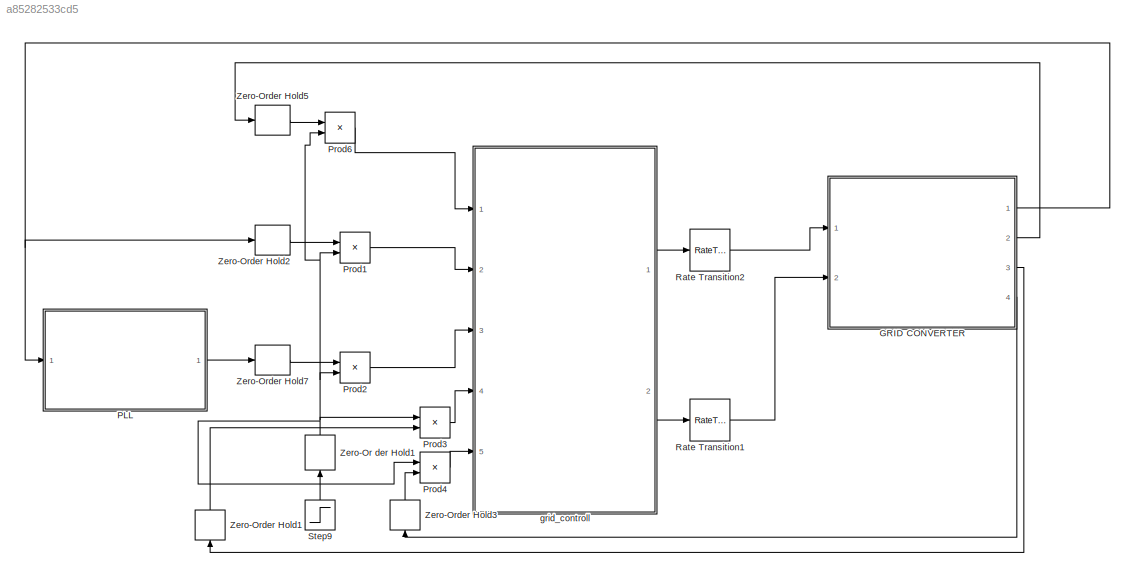
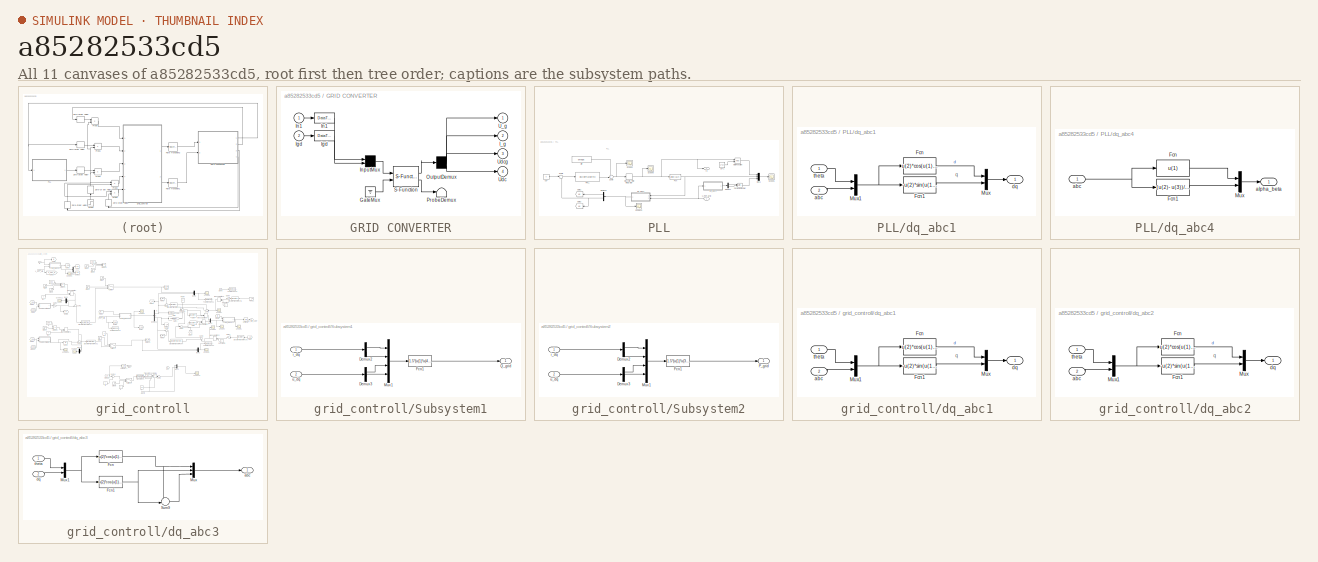
[diagram: thumbnail index - all 11 canvases of the model, root first then tree order]
MODEL slx_a85282533cd5
KIND model
BLOCK [SubSystem] GRID CONVERTER
  CopyFcn = plecs('sl', 203);
  DeleteFcn = plecs('sl', 205);
  DestroyFcn = plecs('sl', 207);
  ErrorFcn = plerrorfcn
  FunctionWithSeparateData = off
  InitFcn = plecs('sl', 214);
  LoadFcn = plecs('sl', 200);
  MaskHideContents = off
  MinAlgLoopOccurrences = off
  NameChangeFcn = plecs('sl', 210);
  Opaque = off
  OpenFcn = plecs('sl', 202);
  Ports = [2, 4]
  PostSaveFcn = plecs('sl', 201);
  PreCopyFcn = plecs('sl', 216);
  PreSaveFcn = plecs('sl', 211);
  PropExecContextOutsideSubsystem = off
  RTWSystemCode = Auto
  RequestExecContextInheritance = off
  StartFcn = plecs('sl', 208);
  StopFcn = plecs('sl', 209);
  UndoDeleteFcn = plecs('sl', 206);
BLOCK [Ground] GRID CONVERTER/ GateMux 
BLOCK [DataTypeConversion] GRID CONVERTER/ Igd 
BLOCK [DataTypeConversion] GRID CONVERTER/ In1 
BLOCK [Mux] GRID CONVERTER/ InputMux 
  Inputs = [ 3 1 ]
  Ports = [2, 1]
BLOCK [Demux] GRID CONVERTER/ OutputDemux 
  Outputs = [ 3 3 1 1 ]
  Ports = [1, 4]
BLOCK [Terminator] GRID CONVERTER/ ProbeDemux 
BLOCK [S-Function] GRID CONVERTER/ S-Function 
  EnableBusSupport = off
  FunctionName = plecs
  Ports = [2, 2]
BLOCK [Outport] GRID CONVERTER/I_g
  IconDisplay = Port number
  Port = 2
  PortDimensions = 3
BLOCK [Inport] GRID CONVERTER/Igd
  IconDisplay = Port number
  Port = 2
  PortDimensions = 1
BLOCK [Inport] GRID CONVERTER/In1
  IconDisplay = Port number
  PortDimensions = 3
BLOCK [Outport] GRID CONVERTER/U_g
  IconDisplay = Port number
  PortDimensions = 3
BLOCK [Outport] GRID CONVERTER/Udc
  IconDisplay = Port number
  Port = 4
  PortDimensions = 1
BLOCK [Outport] GRID CONVERTER/Udcg
  IconDisplay = Port number
  Port = 3
  PortDimensions = 1
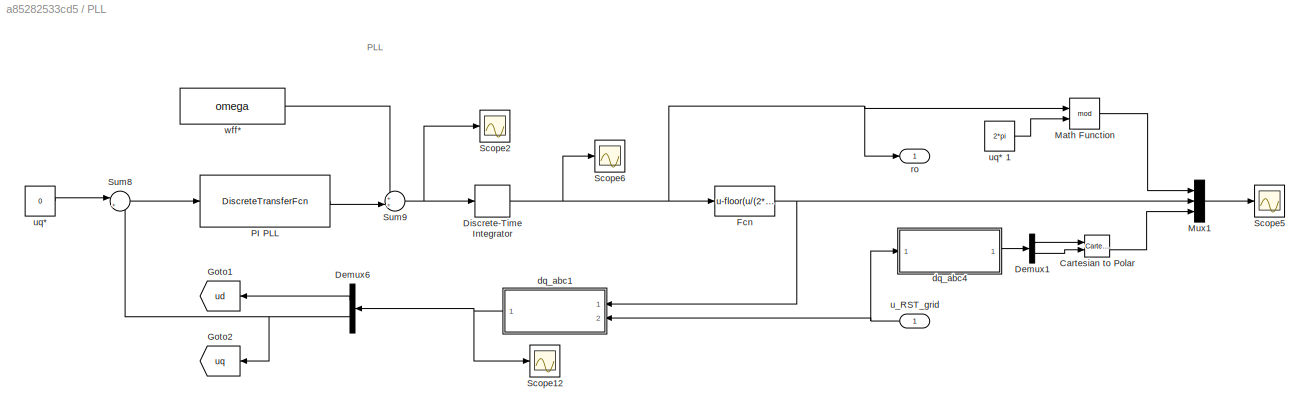
BLOCK [SubSystem] PLL
  FunctionWithSeparateData = off
  MaskHideContents = off
  MinAlgLoopOccurrences = off
  Opaque = off
  Ports = [1, 1]
  PropExecContextOutsideSubsystem = off
  RTWSystemCode = Auto
  RequestExecContextInheritance = off
BLOCK [Reference] PLL/Cartesian to Polar  REF=simulink_extras/Transformations/Cartesian to
Polar
  Ports = [2, 2]
  SourceBlock = simulink_extras/Transformations/Cartesian to\nPolar
  SourceType = Cart2Polar
BLOCK [Demux] PLL/Demux1
  DisplayOption = bar
  Outputs = 2
  Ports = [1, 2]
BLOCK [Demux] PLL/Demux6
  DisplayOption = bar
  Outputs = 2
  Ports = [1, 2]
BLOCK [DiscreteIntegrator] PLL/Discrete-Time Integrator
  ICPrevOutput = DiscIntNeverNeededParam
  ICPrevScaledInput = DiscIntNeverNeededParam
  Ports = [1, 1]
  SampleTime = Ts
BLOCK [Fcn] PLL/Fcn
  Expr = u-floor(u/(2*pi))*2*pi
BLOCK [Goto] PLL/Goto1
  GotoTag = ud
BLOCK [Goto] PLL/Goto2
  GotoTag = uq
BLOCK [Math] PLL/Math Function
  Operator = mod
  Ports = [2, 1]
BLOCK [Mux] PLL/Mux1
  DisplayOption = signals
  Inputs = 3
  Ports = [3, 1]
BLOCK [DiscreteTransferFcn] PLL/PI PLL
  Denominator = dPLL
  InputPortMap = u0
  Numerator = nPLL
  Ports = [1, 1]
  SampleTime = Ts
  a0EqualsOne = on
BLOCK [Scope] PLL/Scope12
  DataFormat = StructureWithTime
  Floating = off
  LimitDataPoints = off
  NumInputPorts = 1
  Ports = [1]
  SampleTime = 0
  SaveName = ScopeData9
  ShowLegends = off
  YMax = 649.65
  YMin = 648.75
  ZoomMode = xonly
BLOCK [Scope] PLL/Scope2
  DataFormat = StructureWithTime
  Floating = off
  LimitDataPoints = off
  NumInputPorts = 1
  Ports = [1]
  SampleTime = 0
  SaveName = ScopeData10
  ShowLegends = off
  YMax = -298.451
  YMin = -329.867
  ZoomMode = xonly
BLOCK [Scope] PLL/Scope5
  DataFormat = StructureWithTime
  Floating = off
  LimitDataPoints = off
  NumInputPorts = 1
  Ports = [1]
  SampleTime = 0
  SaveName = ScopeData11
  ShowLegends = off
  YMax = 6.5
  YMin = -3.5
  ZoomMode = xonly
BLOCK [Scope] PLL/Scope6
  DataFormat = StructureWithTime
  Floating = off
  LimitDataPoints = off
  NumInputPorts = 1
  Ports = [1]
  SampleTime = 0
  SaveName = ScopeData12
  ShowLegends = off
  YMax = -1045.5
  YMin = -1056
  ZoomMode = yonly
BLOCK [Sum] PLL/Sum8
  IconShape = round
  InputSameDT = off
  Inputs = |+-
  OutDataTypeStr = Inherit: Inherit via internal rule
  Ports = [2, 1]
  SaturateOnIntegerOverflow = off
BLOCK [Sum] PLL/Sum9
  IconShape = round
  InputSameDT = off
  Inputs = ++|
  OutDataTypeStr = Inherit: Inherit via internal rule
  Ports = [2, 1]
  SaturateOnIntegerOverflow = off
BLOCK [SubSystem] PLL/dq_abc1
  FunctionWithSeparateData = off
  MaskHideContents = off
  MinAlgLoopOccurrences = off
  Opaque = off
  Ports = [2, 1]
  PropExecContextOutsideSubsystem = off
  RTWSystemCode = Auto
  RequestExecContextInheritance = off
BLOCK [Fcn] PLL/dq_abc1/Fcn
  Expr = u(2)*cos(u(1))+sin(u(1))*(u(3)- u(4))/sqrt(3)
BLOCK [Fcn] PLL/dq_abc1/Fcn1
  Expr = -u(2)*sin(u(1))+cos(u(1))*(u(3)- u(4))/sqrt(3)
BLOCK [Mux] PLL/dq_abc1/Mux
  DisplayOption = bar
  Inputs = 2
  Ports = [2, 1]
BLOCK [Mux] PLL/dq_abc1/Mux1
  DisplayOption = bar
  Inputs = 2
  Ports = [2, 1]
BLOCK [Inport] PLL/dq_abc1/abc
  IconDisplay = Port number
  Port = 2
BLOCK [Outport] PLL/dq_abc1/dq
  IconDisplay = Port number
BLOCK [Inport] PLL/dq_abc1/theta
  IconDisplay = Port number
BLOCK [SubSystem] PLL/dq_abc4
  FunctionWithSeparateData = off
  MaskHideContents = off
  MinAlgLoopOccurrences = off
  Opaque = off
  Ports = [1, 1]
  PropExecContextOutsideSubsystem = off
  RTWSystemCode = Auto
  RequestExecContextInheritance = off
BLOCK [Fcn] PLL/dq_abc4/Fcn
  Expr = u(1)
BLOCK [Fcn] PLL/dq_abc4/Fcn1
  Expr = (u(2)- u(3))/sqrt(3)
BLOCK [Mux] PLL/dq_abc4/Mux
  DisplayOption = bar
  Inputs = 2
  Ports = [2, 1]
BLOCK [Inport] PLL/dq_abc4/abc
  IconDisplay = Port number
BLOCK [Outport] PLL/dq_abc4/alpha_beta
  IconDisplay = Port number
BLOCK [Outport] PLL/ro 
  IconDisplay = Port number
BLOCK [Inport] PLL/u_RST_grid
  IconDisplay = Port number
BLOCK [Constant] PLL/uq* 
  Value = 0
BLOCK [Constant] PLL/uq* 1
  Value = 2*pi
BLOCK [Constant] PLL/wff* 
  Value = omega
BLOCK [Product] Prod1
  InputSameDT = off
  OutDataTypeStr = Inherit: Inherit via internal rule
  Ports = [2, 1]
  RndMeth = Floor
  SampleTime = Tds
  SaturateOnIntegerOverflow = off
BLOCK [Product] Prod2
  InputSameDT = off
  OutDataTypeStr = Inherit: Inherit via internal rule
  Ports = [2, 1]
  RndMeth = Floor
  SampleTime = Tds
  SaturateOnIntegerOverflow = off
BLOCK [Product] Prod3
  InputSameDT = off
  OutDataTypeStr = Inherit: Inherit via internal rule
  Ports = [2, 1]
  RndMeth = Floor
  SampleTime = Tds
  SaturateOnIntegerOverflow = off
BLOCK [Product] Prod4
  InputSameDT = off
  OutDataTypeStr = Inherit: Inherit via internal rule
  Ports = [2, 1]
  RndMeth = Floor
  SampleTime = Tds
  SaturateOnIntegerOverflow = off
BLOCK [Product] Prod6
  InputSameDT = off
  OutDataTypeStr = Inherit: Inherit via internal rule
  Ports = [2, 1]
  RndMeth = Floor
  SampleTime = Tds
  SaturateOnIntegerOverflow = off
BLOCK [RateTransition] Rate Transition1
  OutPortSampleTime = Tds
  OutPortSampleTimeOpt = Inherit
BLOCK [RateTransition] Rate Transition2
  OutPortSampleTime = Tds
  OutPortSampleTimeOpt = Inherit
BLOCK [Step] Step9
  SampleTime = Ts
  Time = 0.2
BLOCK [ZeroOrderHold] Zero-Or der Hold1
  SampleTime = Tds
BLOCK [ZeroOrderHold] Zero-Order Hold1
  SampleTime = Tds
BLOCK [ZeroOrderHold] Zero-Order Hold2
  SampleTime = Tds
BLOCK [ZeroOrderHold] Zero-Order Hold3
  SampleTime = Tds
BLOCK [ZeroOrderHold] Zero-Order Hold5
  SampleTime = Tds
BLOCK [ZeroOrderHold] Zero-Order Hold7
  SampleTime = Tds
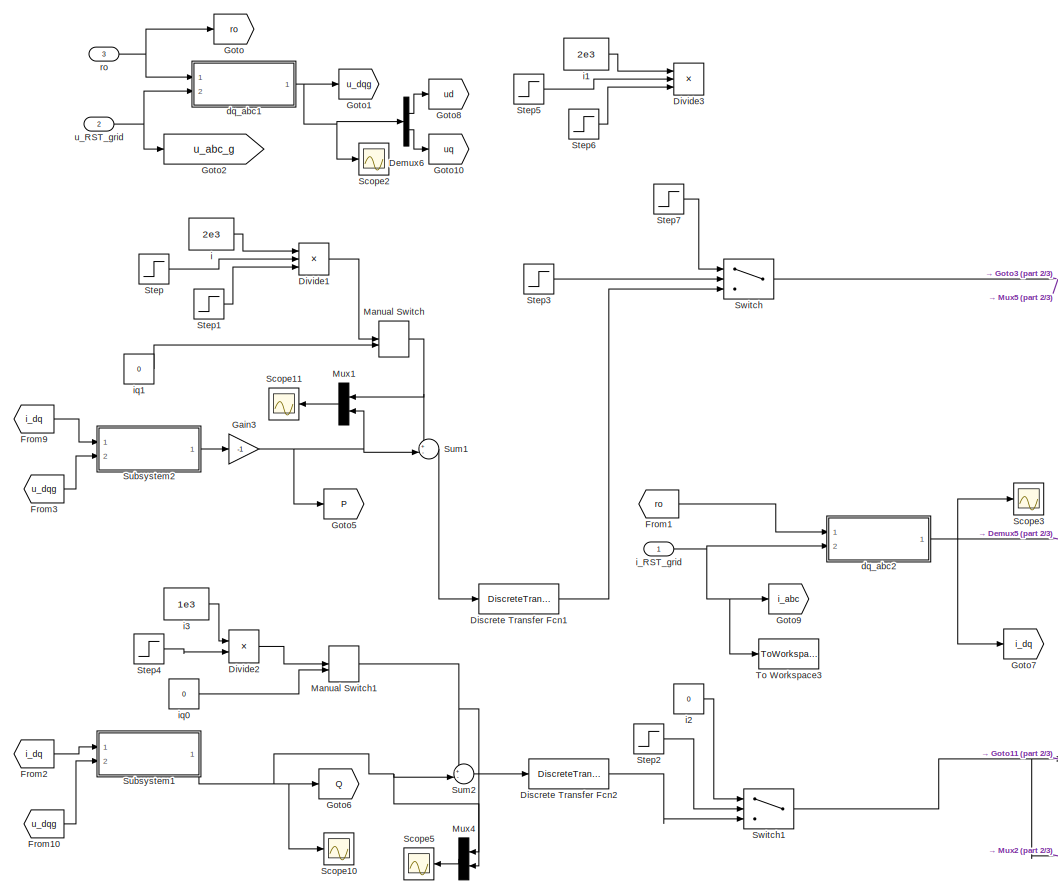
[diagram: grid_controll - part 1/3, middle left region]
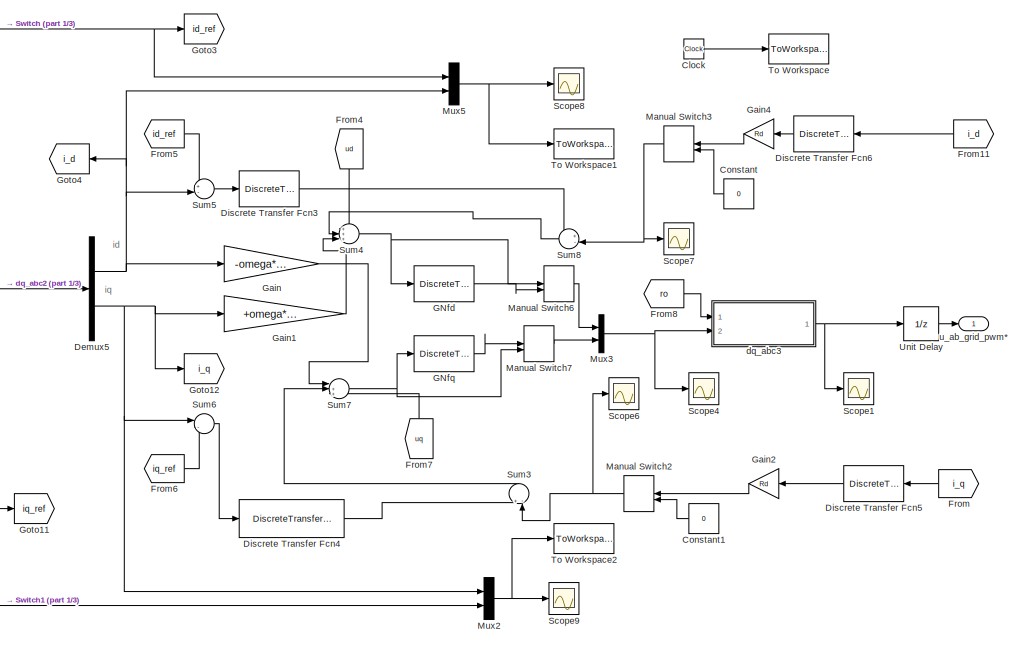
[diagram: grid_controll - part 2/3, middle right region]
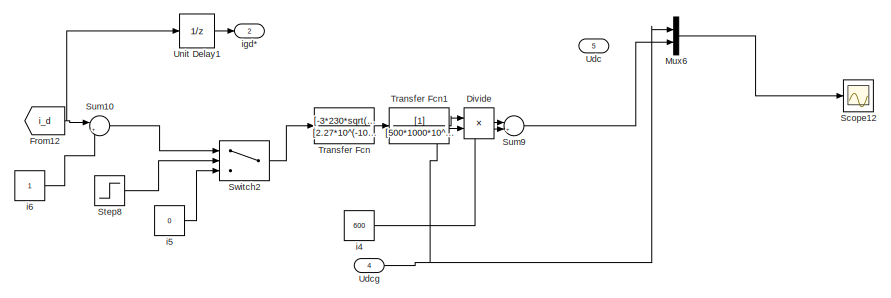
[diagram: grid_controll - part 3/3, bottom center region]
BLOCK [SubSystem] grid_controll
  FunctionWithSeparateData = off
  MaskHideContents = off
  MinAlgLoopOccurrences = off
  Opaque = off
  Ports = [5, 2]
  PropExecContextOutsideSubsystem = off
  RTWSystemCode = Auto
  RequestExecContextInheritance = off
BLOCK [Clock] grid_controll/Clock
BLOCK [Constant] grid_controll/Constant
  Value = 0
BLOCK [Constant] grid_controll/Constant1
  Value = 0
BLOCK [Demux] grid_controll/Demux5
  DisplayOption = bar
  Outputs = 2
  Ports = [1, 2]
BLOCK [Demux] grid_controll/Demux6
  DisplayOption = bar
  Outputs = 2
  Ports = [1, 2]
BLOCK [DiscreteTransferFcn] grid_controll/Discrete Transfer Fcn1
  Denominator = dQ
  InputPortMap = u0
  Numerator = nQ
  Ports = [1, 1]
  SampleTime = Tds
BLOCK [DiscreteTransferFcn] grid_controll/Discrete Transfer Fcn2
  Denominator = dQ
  InputPortMap = u0
  Numerator = nQ
  Ports = [1, 1]
  SampleTime = Tds
BLOCK [DiscreteTransferFcn] grid_controll/Discrete Transfer Fcn3
  Denominator = dId_g
  InputPortMap = u0
  Numerator = nId_g
  Ports = [1, 1]
  SampleTime = Tds
BLOCK [DiscreteTransferFcn] grid_controll/Discrete Transfer Fcn4
  Denominator = dIq_g
  InputPortMap = u0
  Numerator = nIq_g
  Ports = [1, 1]
  SampleTime = Tds
BLOCK [DiscreteTransferFcn] grid_controll/Discrete Transfer Fcn5
  Denominator = dH_D
  InputPortMap = u0
  Numerator = nH_D
  Ports = [1, 1]
  SampleTime = Tds
BLOCK [DiscreteTransferFcn] grid_controll/Discrete Transfer Fcn6
  Denominator = dH_D
  InputPortMap = u0
  Numerator = nH_D
  Ports = [1, 1]
  SampleTime = Tds
BLOCK [Product] grid_controll/Divide
  InputSameDT = off
  Inputs = */
  OutDataTypeStr = Inherit: Inherit via internal rule
  Ports = [2, 1]
  RndMeth = Floor
  SaturateOnIntegerOverflow = off
BLOCK [Product] grid_controll/Divide1
  InputSameDT = off
  Inputs = ***
  OutDataTypeStr = Inherit: Inherit via internal rule
  Ports = [3, 1]
  RndMeth = Floor
  SampleTime = Tds
  SaturateOnIntegerOverflow = off
BLOCK [Product] grid_controll/Divide2
  InputSameDT = off
  Inputs = **
  OutDataTypeStr = Inherit: Inherit via internal rule
  Ports = [2, 1]
  RndMeth = Floor
  SampleTime = Tds
  SaturateOnIntegerOverflow = off
BLOCK [Product] grid_controll/Divide3
  InputSameDT = off
  Inputs = ***
  OutDataTypeStr = Inherit: Inherit via internal rule
  Ports = [3, 1]
  RndMeth = Floor
  SampleTime = Tds
  SaturateOnIntegerOverflow = off
BLOCK [From] grid_controll/From
  GotoTag = i_q
BLOCK [From] grid_controll/From1
  GotoTag = ro
BLOCK [From] grid_controll/From10
  GotoTag = u_dqg
BLOCK [From] grid_controll/From11
  GotoTag = i_d
BLOCK [From] grid_controll/From12
  GotoTag = i_d
BLOCK [From] grid_controll/From2
  GotoTag = i_dq
BLOCK [From] grid_controll/From3
  GotoTag = u_dqg
BLOCK [From] grid_controll/From4
  GotoTag = ud
BLOCK [From] grid_controll/From5
  GotoTag = id_ref
BLOCK [From] grid_controll/From6
  GotoTag = iq_ref
BLOCK [From] grid_controll/From7
  GotoTag = uq
BLOCK [From] grid_controll/From8
  GotoTag = ro
BLOCK [From] grid_controll/From9
  GotoTag = i_dq
BLOCK [DiscreteTransferFcn] grid_controll/GNfd
  Denominator = dGnf
  InputPortMap = u0
  Numerator = nGnf
  Ports = [1, 1]
  SampleTime = Tds
BLOCK [DiscreteTransferFcn] grid_controll/GNfq
  Denominator = dGnf
  InputPortMap = u0
  Numerator = nGnf
  Ports = [1, 1]
  SampleTime = Tds
BLOCK [Gain] grid_controll/Gain
  Gain = -omega*Lf
  OutDataTypeStr = Inherit: Inherit via internal rule
  ParamDataTypeStr = Inherit: Inherit via internal rule
  SampleTime = Tds
  SaturateOnIntegerOverflow = off
BLOCK [Gain] grid_controll/Gain1
  Gain = +omega*Lf
  OutDataTypeStr = Inherit: Inherit via internal rule
  ParamDataTypeStr = Inherit: Inherit via internal rule
  SampleTime = Tds
  SaturateOnIntegerOverflow = off
BLOCK [Gain] grid_controll/Gain2
  Gain = Rd
  OutDataTypeStr = Inherit: Inherit via internal rule
  ParamDataTypeStr = Inherit: Inherit via internal rule
  SampleTime = Tds
  SaturateOnIntegerOverflow = off
BLOCK [Gain] grid_controll/Gain3
  Gain = -1
  OutDataTypeStr = Inherit: Inherit via internal rule
  ParamDataTypeStr = Inherit: Inherit via internal rule
  SaturateOnIntegerOverflow = off
BLOCK [Gain] grid_controll/Gain4
  Gain = Rd
  OutDataTypeStr = Inherit: Inherit via internal rule
  ParamDataTypeStr = Inherit: Inherit via internal rule
  SampleTime = Tds
  SaturateOnIntegerOverflow = off
BLOCK [Goto] grid_controll/Goto
  GotoTag = ro
BLOCK [Goto] grid_controll/Goto1
  GotoTag = u_dqg
BLOCK [Goto] grid_controll/Goto10
  GotoTag = uq
BLOCK [Goto] grid_controll/Goto11
  GotoTag = iq_ref
BLOCK [Goto] grid_controll/Goto12
  GotoTag = i_q
BLOCK [Goto] grid_controll/Goto2
  GotoTag = u_abc_g
BLOCK [Goto] grid_controll/Goto3
  GotoTag = id_ref
BLOCK [Goto] grid_controll/Goto4
  GotoTag = i_d
BLOCK [Goto] grid_controll/Goto5
  GotoTag = P
BLOCK [Goto] grid_controll/Goto6
  GotoTag = Q
BLOCK [Goto] grid_controll/Goto7
  GotoTag = i_dq
BLOCK [Goto] grid_controll/Goto8
  GotoTag = ud
BLOCK [Goto] grid_controll/Goto9
  GotoTag = i_abc
BLOCK [ManualSwitch] grid_controll/Manual Switch
BLOCK [ManualSwitch] grid_controll/Manual Switch1
BLOCK [ManualSwitch] grid_controll/Manual Switch2
  CurrentSetting = 0
BLOCK [ManualSwitch] grid_controll/Manual Switch3
  CurrentSetting = 0
BLOCK [ManualSwitch] grid_controll/Manual Switch6
BLOCK [ManualSwitch] grid_controll/Manual Switch7
  CurrentSetting = 0
BLOCK [Mux] grid_controll/Mux1
  DisplayOption = signals
  Inputs = 2
  Ports = [2, 1]
BLOCK [Mux] grid_controll/Mux2
  DisplayOption = signals
  Inputs = 2
  Ports = [2, 1]
BLOCK [Mux] grid_controll/Mux3
  DisplayOption = bar
  Inputs = 2
  Ports = [2, 1]
BLOCK [Mux] grid_controll/Mux4
  DisplayOption = signals
  Inputs = 2
  Ports = [2, 1]
BLOCK [Mux] grid_controll/Mux5
  DisplayOption = signals
  Inputs = 2
  Ports = [2, 1]
BLOCK [Mux] grid_controll/Mux6
  DisplayOption = bar
  Inputs = 2
  Ports = [2, 1]
BLOCK [Scope] grid_controll/Scope1
  DataFormat = StructureWithTime
  Floating = off
  LimitDataPoints = off
  NumInputPorts = 1
  Ports = [1]
  SampleTime = 0
  SaveName = ScopeData16
  ShowLegends = off
  YMax = 7e+15
  YMin = -7e+15
  ZoomMode = xonly
BLOCK [Scope] grid_controll/Scope10
  DataFormat = StructureWithTime
  Floating = off
  LimitDataPoints = off
  NumInputPorts = 1
  Ports = [1]
  SampleTime = 0
  SaveName = ScopeData4
  ShowLegends = off
  YMax = 2.5
  YMin = -17.5
  ZoomMode = xonly
BLOCK [Scope] grid_controll/Scope11
  Floating = off
  LimitDataPoints = off
  NumInputPorts = 1
  Ports = [1]
  SampleTime = 0
  SaveName = Pdata
  SaveToWorkspace = on
  ShowLegends = off
  YMax = 2.5
  YMin = -17.5
BLOCK [Scope] grid_controll/Scope12
  DataFormat = StructureWithTime
  Floating = off
  LimitDataPoints = off
  NumInputPorts = 1
  Ports = [1]
  SampleTime = 0
  SaveName = ScopeData3
  ShowLegends = off
  YMax = 600
  YMin = 380
BLOCK [Scope] grid_controll/Scope2
  DataFormat = StructureWithTime
  Floating = off
  LimitDataPoints = off
  NumInputPorts = 1
  Ports = [1]
  SampleTime = 0
  ShowLegends = off
  YMax = 2.5
  YMin = -17.5
BLOCK [Scope] grid_controll/Scope3
  DataFormat = StructureWithTime
  Floating = off
  LimitDataPoints = off
  NumInputPorts = 1
  Ports = [1]
  SampleTime = 0
  SaveName = ScopeData22
  ShowLegends = off
  YMax = 2.5
  YMin = -17.5
  ZoomMode = xonly
BLOCK [Scope] grid_controll/Scope4
  DataFormat = StructureWithTime
  Floating = off
  LimitDataPoints = off
  NumInputPorts = 1
  Ports = [1]
  SampleTime = 0
  SaveName = ScopeData23
  ShowLegends = off
  YMax = 10.5
  YMin = -0.5
BLOCK [Scope] grid_controll/Scope5
  Floating = off
  LimitDataPoints = off
  NumInputPorts = 1
  Ports = [1]
  SampleTime = 0
  SaveName = Qdata
  SaveToWorkspace = on
  ShowLegends = off
  YMax = 2.5
  YMin = -17.5
BLOCK [Scope] grid_controll/Scope6
  DataFormat = StructureWithTime
  Floating = off
  LimitDataPoints = off
  NumInputPorts = 1
  Ports = [1]
  SampleTime = 0
  SaveName = ScopeData1
  ShowLegends = off
  YMax = 250
  YMin = -250
BLOCK [Scope] grid_controll/Scope7
  DataFormat = StructureWithTime
  Floating = off
  LimitDataPoints = off
  NumInputPorts = 1
  Ports = [1]
  SampleTime = 0
  SaveName = ScopeData2
  ShowLegends = off
  YMax = 300
  YMin = -300
BLOCK [Scope] grid_controll/Scope8
  Floating = off
  LimitDataPoints = off
  NumInputPorts = 1
  Ports = [1]
  SampleTime = 0
  SaveName = Iddata
  SaveToWorkspace = on
  ShowLegends = off
  TimeRange = 1
  YMax = 75
  YMin = -350
BLOCK [Scope] grid_controll/Scope9
  Floating = off
  LimitDataPoints = off
  NumInputPorts = 1
  Ports = [1]
  SampleTime = 0
  SaveName = Iqdata
  SaveToWorkspace = on
  ShowLegends = off
  TimeRange = 3
  YMax = 600000
  YMin = -800000
BLOCK [Step] grid_controll/Step
  SampleTime = Tds
BLOCK [Step] grid_controll/Step1
  After = 3/2
  Before = 1
  SampleTime = Tds
  Time = 2.5
BLOCK [Step] grid_controll/Step2
  SampleTime = Tds
  Time = 0.5
BLOCK [Step] grid_controll/Step3
  SampleTime = Tds
  Time = 0.5
BLOCK [Step] grid_controll/Step4
  SampleTime = Tds
BLOCK [Step] grid_controll/Step5
  SampleTime = Tds
BLOCK [Step] grid_controll/Step6
  After = 3/2
  Before = 1
  SampleTime = Tds
  Time = 2.5
BLOCK [Step] grid_controll/Step7
  Before = 1
  SampleTime = Tds
  Time = 2
BLOCK [Step] grid_controll/Step8
  SampleTime = Tds
  Time = 3
BLOCK [SubSystem] grid_controll/Subsystem1
  FunctionWithSeparateData = off
  MaskHideContents = off
  MinAlgLoopOccurrences = off
  Opaque = off
  Ports = [2, 1]
  PropExecContextOutsideSubsystem = off
  RTWSystemCode = Auto
  RequestExecContextInheritance = off
BLOCK [Demux] grid_controll/Subsystem1/Demux2
  DisplayOption = bar
  Outputs = 2
  Ports = [1, 2]
BLOCK [Demux] grid_controll/Subsystem1/Demux3
  DisplayOption = bar
  Outputs = 2
  Ports = [1, 2]
BLOCK [Fcn] grid_controll/Subsystem1/Fcn1
  Expr = 1.5*(u(1)*u(4) - u(2)*u(3) )
BLOCK [Mux] grid_controll/Subsystem1/Mux1
  DisplayOption = bar
  Ports = [4, 1]
BLOCK [Outport] grid_controll/Subsystem1/Q_grid 
  IconDisplay = Port number
BLOCK [Inport] grid_controll/Subsystem1/i_dq
  IconDisplay = Port number
BLOCK [Inport] grid_controll/Subsystem1/u_dq
  IconDisplay = Port number
  Port = 2
BLOCK [SubSystem] grid_controll/Subsystem2
  FunctionWithSeparateData = off
  MaskHideContents = off
  MinAlgLoopOccurrences = off
  Opaque = off
  Ports = [2, 1]
  PropExecContextOutsideSubsystem = off
  RTWSystemCode = Auto
  RequestExecContextInheritance = off
BLOCK [Demux] grid_controll/Subsystem2/Demux2
  DisplayOption = bar
  Outputs = 2
  Ports = [1, 2]
BLOCK [Demux] grid_controll/Subsystem2/Demux3
  DisplayOption = bar
  Outputs = 2
  Ports = [1, 2]
BLOCK [Fcn] grid_controll/Subsystem2/Fcn1
  Expr = 1.5*(u(1)*u(3) + u(2)*u(4) )
BLOCK [Mux] grid_controll/Subsystem2/Mux1
  DisplayOption = bar
  Ports = [4, 1]
BLOCK [Outport] grid_controll/Subsystem2/P_grid
  IconDisplay = Port number
BLOCK [Inport] grid_controll/Subsystem2/i_dq
  IconDisplay = Port number
BLOCK [Inport] grid_controll/Subsystem2/u_dq
  IconDisplay = Port number
  Port = 2
BLOCK [Sum] grid_controll/Sum1
  IconShape = round
  InputSameDT = off
  Inputs = +-|
  OutDataTypeStr = Inherit: Inherit via internal rule
  Ports = [2, 1]
  SampleTime = Tds
  SaturateOnIntegerOverflow = off
BLOCK [Sum] grid_controll/Sum10
  IconShape = round
  InputSameDT = off
  Inputs = |+-
  OutDataTypeStr = Inherit: Inherit via internal rule
  Ports = [2, 1]
  SampleTime = Tds
  SaturateOnIntegerOverflow = off
BLOCK [Sum] grid_controll/Sum2
  IconShape = round
  InputSameDT = off
  Inputs = +-|
  OutDataTypeStr = Inherit: Inherit via internal rule
  Ports = [2, 1]
  SampleTime = Tds
  SaturateOnIntegerOverflow = off
BLOCK [Sum] grid_controll/Sum3
  IconShape = round
  InputSameDT = off
  Inputs = +-|
  OutDataTypeStr = Inherit: Inherit via internal rule
  Ports = [2, 1]
  SampleTime = Tds
  SaturateOnIntegerOverflow = off
BLOCK [Sum] grid_controll/Sum4
  IconShape = round
  InputSameDT = off
  Inputs = +++|
  OutDataTypeStr = Inherit: Inherit via internal rule
  Ports = [3, 1]
  SampleTime = Tds
  SaturateOnIntegerOverflow = off
BLOCK [Sum] grid_controll/Sum5
  IconShape = round
  InputSameDT = off
  Inputs = +-|
  OutDataTypeStr = Inherit: Inherit via internal rule
  Ports = [2, 1]
  SampleTime = Tds
  SaturateOnIntegerOverflow = off
BLOCK [Sum] grid_controll/Sum6
  IconShape = round
  InputSameDT = off
  Inputs = |-+
  OutDataTypeStr = Inherit: Inherit via internal rule
  Ports = [2, 1]
  SampleTime = Tds
  SaturateOnIntegerOverflow = off
BLOCK [Sum] grid_controll/Sum7
  IconShape = round
  InputSameDT = off
  Inputs = |+++
  OutDataTypeStr = Inherit: Inherit via internal rule
  Ports = [3, 1]
  SampleTime = Tds
  SaturateOnIntegerOverflow = off
BLOCK [Sum] grid_controll/Sum8
  IconShape = round
  InputSameDT = off
  Inputs = +-|
  OutDataTypeStr = Inherit: Inherit via internal rule
  Ports = [2, 1]
  SampleTime = Tds
  SaturateOnIntegerOverflow = off
BLOCK [Sum] grid_controll/Sum9
  IconShape = round
  InputSameDT = off
  Inputs = |++
  OutDataTypeStr = Inherit: Inherit via internal rule
  Ports = [2, 1]
  SampleTime = Tds
  SaturateOnIntegerOverflow = off
BLOCK [Switch] grid_controll/Switch
  InputSameDT = off
  SaturateOnIntegerOverflow = off
  Threshold = 0.5
BLOCK [Switch] grid_controll/Switch1
  InputSameDT = off
  SaturateOnIntegerOverflow = off
  Threshold = 0.5
BLOCK [Switch] grid_controll/Switch2
  InputSameDT = off
  SaturateOnIntegerOverflow = off
  Threshold = 0.5
BLOCK [ToWorkspace] grid_controll/To Workspace
  MaxDataPoints = inf
  Ports = [1]
  SampleTime = -1
  VariableName = t_sim
BLOCK [ToWorkspace] grid_controll/To Workspace1
  MaxDataPoints = inf
  Ports = [1]
  SampleTime = -1
  VariableName = i_gd
BLOCK [ToWorkspace] grid_controll/To Workspace2
  MaxDataPoints = inf
  Ports = [1]
  SampleTime = -1
  VariableName = i_gq
BLOCK [ToWorkspace] grid_controll/To Workspace3
  MaxDataPoints = inf
  Ports = [1]
  SampleTime = Tds
  VariableName = i_abc
BLOCK [TransferFcn] grid_controll/Transfer Fcn
  Denominator = [2.27*10^(-10) 3*10^(-8) 1]
  Numerator = [-3*230*sqrt(2)/4]
BLOCK [TransferFcn] grid_controll/Transfer Fcn1
  Denominator = [500*1000*10^(-6) 0]
BLOCK [Inport] grid_controll/Udc
  IconDisplay = Port number
  Port = 5
BLOCK [Inport] grid_controll/Udcg
  IconDisplay = Port number
  Port = 4
BLOCK [UnitDelay] grid_controll/Unit Delay
  InputProcessing = Elements as channels (sample based)
  SampleTime = Tds
BLOCK [UnitDelay] grid_controll/Unit Delay1
  InputProcessing = Elements as channels (sample based)
  SampleTime = Tds
BLOCK [SubSystem] grid_controll/dq_abc1
  FunctionWithSeparateData = off
  MaskHideContents = off
  MinAlgLoopOccurrences = off
  Opaque = off
  Ports = [2, 1]
  PropExecContextOutsideSubsystem = off
  RTWSystemCode = Auto
  RequestExecContextInheritance = off
BLOCK [Fcn] grid_controll/dq_abc1/Fcn
  Expr = u(2)*cos(u(1))+sin(u(1))*(u(3)- u(4))/sqrt(3)
  SampleTime = Tds
BLOCK [Fcn] grid_controll/dq_abc1/Fcn1
  Expr = -u(2)*sin(u(1))+cos(u(1))*(u(3)- u(4))/sqrt(3)
  SampleTime = Tds
BLOCK [Mux] grid_controll/dq_abc1/Mux
  DisplayOption = bar
  Inputs = 2
  Ports = [2, 1]
BLOCK [Mux] grid_controll/dq_abc1/Mux1
  DisplayOption = bar
  Inputs = 2
  Ports = [2, 1]
BLOCK [Inport] grid_controll/dq_abc1/abc
  IconDisplay = Port number
  Port = 2
BLOCK [Outport] grid_controll/dq_abc1/dq
  IconDisplay = Port number
BLOCK [Inport] grid_controll/dq_abc1/theta
  IconDisplay = Port number
BLOCK [SubSystem] grid_controll/dq_abc2
  FunctionWithSeparateData = off
  MaskHideContents = off
  MinAlgLoopOccurrences = off
  Opaque = off
  Ports = [2, 1]
  PropExecContextOutsideSubsystem = off
  RTWSystemCode = Auto
  RequestExecContextInheritance = off
BLOCK [Fcn] grid_controll/dq_abc2/Fcn
  Expr = u(2)*cos(u(1))+sin(u(1))*(u(3)- u(4))/sqrt(3)
  SampleTime = Tds
BLOCK [Fcn] grid_controll/dq_abc2/Fcn1
  Expr = -u(2)*sin(u(1))+cos(u(1))*(u(3)- u(4))/sqrt(3)
  SampleTime = Tds
BLOCK [Mux] grid_controll/dq_abc2/Mux
  DisplayOption = bar
  Inputs = 2
  Ports = [2, 1]
BLOCK [Mux] grid_controll/dq_abc2/Mux1
  DisplayOption = bar
  Inputs = 2
  Ports = [2, 1]
BLOCK [Inport] grid_controll/dq_abc2/abc
  IconDisplay = Port number
  Port = 2
BLOCK [Outport] grid_controll/dq_abc2/dq
  IconDisplay = Port number
BLOCK [Inport] grid_controll/dq_abc2/theta
  IconDisplay = Port number
BLOCK [SubSystem] grid_controll/dq_abc3
  FunctionWithSeparateData = off
  MaskHideContents = off
  MinAlgLoopOccurrences = off
  Opaque = off
  Ports = [2, 1]
  PropExecContextOutsideSubsystem = off
  RTWSystemCode = Auto
  RequestExecContextInheritance = off
BLOCK [Fcn] grid_controll/dq_abc3/Fcn
  Expr = u(2)*cos(u(1)) - u(3)*sin(u(1))
BLOCK [Fcn] grid_controll/dq_abc3/Fcn1
  Expr = u(2)*cos(u(1) - 2*pi/3) - u(3)*sin(u(1)-2*pi/3)
BLOCK [Mux] grid_controll/dq_abc3/Mux
  DisplayOption = bar
  Inputs = 3
  Ports = [3, 1]
BLOCK [Mux] grid_controll/dq_abc3/Mux1
  DisplayOption = bar
  Inputs = 2
  Ports = [2, 1]
BLOCK [Sum] grid_controll/dq_abc3/Sum9
  IconShape = round
  InputSameDT = off
  Inputs = --|
  OutDataTypeStr = Inherit: Inherit via internal rule
  Ports = [2, 1]
  SaturateOnIntegerOverflow = off
BLOCK [Outport] grid_controll/dq_abc3/abc 
  IconDisplay = Port number
BLOCK [Inport] grid_controll/dq_abc3/dq
  IconDisplay = Port number
  Port = 2
BLOCK [Inport] grid_controll/dq_abc3/theta
  IconDisplay = Port number
BLOCK [Constant] grid_controll/i
  SampleTime = Tds
  Value = 2e3
BLOCK [Constant] grid_controll/i1
  SampleTime = Tds
  Value = 2e3
BLOCK [Constant] grid_controll/i2
  Value = 0
BLOCK [Constant] grid_controll/i3
  SampleTime = Tds
  Value = 1e3
BLOCK [Constant] grid_controll/i4
  Value = 600
BLOCK [Constant] grid_controll/i5
  Value = 0
BLOCK [Constant] grid_controll/i6
BLOCK [Inport] grid_controll/i_RST_grid
  IconDisplay = Port number
  SampleTime = Ts
BLOCK [Outport] grid_controll/igd* 
  IconDisplay = Port number
  Port = 2
BLOCK [Constant] grid_controll/iq0
  Value = 0
BLOCK [Constant] grid_controll/iq1
  Value = 0
BLOCK [Inport] grid_controll/ro
  IconDisplay = Port number
  Port = 3
BLOCK [Inport] grid_controll/u_RST_grid
  IconDisplay = Port number
  Port = 2
BLOCK [Outport] grid_controll/u_ab_grid_pwm* 
  IconDisplay = Port number
ANNOTATION PLL: PLL
ANNOTATION PLL/dq_abc1: q
ANNOTATION grid_controll: id
ANNOTATION grid_controll: iq
ANNOTATION grid_controll/dq_abc1: q
ANNOTATION grid_controll/dq_abc2: q
NET GRID CONVERTER:1 -> PLL:1, Zero-Order Hold2:1
LINE GRID CONVERTER:2 -> Zero-Order Hold5:1
LINE GRID CONVERTER:3 -> Zero-Order Hold1:1
LINE GRID CONVERTER:4 -> Zero-Order Hold3:1
LINE PLL/Cartesian to Polar:2 -> PLL/Mux1:3
LINE PLL/Demux1:1 -> PLL/Cartesian to Polar:1
LINE PLL/Demux1:2 -> PLL/Cartesian to Polar:2
LINE PLL/Demux6:1 -> PLL/Goto1:1
NET PLL/Demux6:2 -> PLL/Goto2:1, PLL/Sum8:2
NET PLL/Discrete-Time Integrator:1 -> PLL/Fcn:1, PLL/Math Function:1, PLL/Scope6:1, PLL/ro :1
NET PLL/Fcn:1 -> PLL/Mux1:2, PLL/dq_abc1:1
LINE PLL/Math Function:1 -> PLL/Mux1:1
LINE PLL/Mux1:1 -> PLL/Scope5:1
LINE PLL/PI PLL:1 -> PLL/Sum9:2
LINE PLL/Sum8:1 -> PLL/PI PLL:1
NET PLL/Sum9:1 -> PLL/Discrete-Time Integrator:1, PLL/Scope2:1
LINE PLL/dq_abc1/Fcn1:1 -> PLL/dq_abc1/Mux:2
LINE PLL/dq_abc1/Fcn:1 -> PLL/dq_abc1/Mux:1
NET PLL/dq_abc1/Mux1:1 -> PLL/dq_abc1/Fcn1:1, PLL/dq_abc1/Fcn:1
LINE PLL/dq_abc1/Mux:1 -> PLL/dq_abc1/dq:1
LINE PLL/dq_abc1/abc:1 -> PLL/dq_abc1/Mux1:2
LINE PLL/dq_abc1/theta:1 -> PLL/dq_abc1/Mux1:1
NET PLL/dq_abc1:1 -> PLL/Demux6:1, PLL/Scope12:1
LINE PLL/dq_abc4/Fcn1:1 -> PLL/dq_abc4/Mux:2
LINE PLL/dq_abc4/Fcn:1 -> PLL/dq_abc4/Mux:1
LINE PLL/dq_abc4/Mux:1 -> PLL/dq_abc4/alpha_beta:1
NET PLL/dq_abc4/abc:1 -> PLL/dq_abc4/Fcn1:1, PLL/dq_abc4/Fcn:1
LINE PLL/dq_abc4:1 -> PLL/Demux1:1
NET PLL/u_RST_grid:1 -> PLL/dq_abc1:2, PLL/dq_abc4:1
LINE PLL/uq* 1:1 -> PLL/Math Function:2
LINE PLL/uq* :1 -> PLL/Sum8:1
LINE PLL/wff* :1 -> PLL/Sum9:1
LINE PLL:1 -> Zero-Order Hold7:1
LINE Prod1:1 -> grid_controll:2
LINE Prod2:1 -> grid_controll:3
LINE Prod3:1 -> grid_controll:4
LINE Prod4:1 -> grid_controll:5
LINE Prod6:1 -> grid_controll:1
LINE Rate Transition1:1 -> GRID CONVERTER:2
LINE Rate Transition2:1 -> GRID CONVERTER:1
LINE Step9:1 -> Zero-Or der Hold1:1
NET Zero-Or der Hold1:1 -> Prod1:2, Prod2:2, Prod3:1, Prod4:1, Prod6:2
LINE Zero-Order Hold1:1 -> Prod3:2
LINE Zero-Order Hold2:1 -> Prod1:1
LINE Zero-Order Hold3:1 -> Prod4:2
LINE Zero-Order Hold5:1 -> Prod6:1
LINE Zero-Order Hold7:1 -> Prod2:1
LINE grid_controll/Clock:1 -> grid_controll/To Workspace:1
LINE grid_controll/Constant1:1 -> grid_controll/Manual Switch2:2
LINE grid_controll/Constant:1 -> grid_controll/Manual Switch3:2
NET grid_controll/Demux5:1 -> grid_controll/Gain:1, grid_controll/Goto4:1, grid_controll/Mux5:2, grid_controll/Sum5:2
NET grid_controll/Demux5:2 -> grid_controll/Gain1:1, grid_controll/Goto12:1, grid_controll/Mux2:1, grid_controll/Sum6:1
LINE grid_controll/Demux6:1 -> grid_controll/Goto8:1
LINE grid_controll/Demux6:2 -> grid_controll/Goto10:1
LINE grid_controll/Discrete Transfer Fcn1:1 -> grid_controll/Switch:3
LINE grid_controll/Discrete Transfer Fcn2:1 -> grid_controll/Switch1:3
LINE grid_controll/Discrete Transfer Fcn3:1 -> grid_controll/Sum8:1
LINE grid_controll/Discrete Transfer Fcn4:1 -> grid_controll/Sum3:1
LINE grid_controll/Discrete Transfer Fcn5:1 -> grid_controll/Gain2:1
LINE grid_controll/Discrete Transfer Fcn6:1 -> grid_controll/Gain4:1
LINE grid_controll/Divide1:1 -> grid_controll/Manual Switch:1
LINE grid_controll/Divide2:1 -> grid_controll/Manual Switch1:1
LINE grid_controll/Divide:1 -> grid_controll/Sum9:1
LINE grid_controll/From10:1 -> grid_controll/Subsystem1:2
LINE grid_controll/From11:1 -> grid_controll/Discrete Transfer Fcn6:1
NET grid_controll/From12:1 -> grid_controll/Sum10:1, grid_controll/Unit Delay1:1
LINE grid_controll/From1:1 -> grid_controll/dq_abc2:1
LINE grid_controll/From2:1 -> grid_controll/Subsystem1:1
LINE grid_controll/From3:1 -> grid_controll/Subsystem2:2
LINE grid_controll/From4:1 -> grid_controll/Sum4:1
LINE grid_controll/From5:1 -> grid_controll/Sum5:1
LINE grid_controll/From6:1 -> grid_controll/Sum6:2
LINE grid_controll/From7:1 -> grid_controll/Sum7:3
LINE grid_controll/From8:1 -> grid_controll/dq_abc3:1
LINE grid_controll/From9:1 -> grid_controll/Subsystem2:1
LINE grid_controll/From:1 -> grid_controll/Discrete Transfer Fcn5:1
LINE grid_controll/GNfd:1 -> grid_controll/Manual Switch6:2
LINE grid_controll/GNfq:1 -> grid_controll/Manual Switch7:1
LINE grid_controll/Gain1:1 -> grid_controll/Sum4:3
LINE grid_controll/Gain2:1 -> grid_controll/Manual Switch2:1
NET grid_controll/Gain3:1 -> grid_controll/Goto5:1, grid_controll/Mux1:2, grid_controll/Sum1:2
LINE grid_controll/Gain4:1 -> grid_controll/Manual Switch3:1
LINE grid_controll/Gain:1 -> grid_controll/Sum7:1
NET grid_controll/Manual Switch1:1 -> grid_controll/Mux4:1, grid_controll/Sum2:1
NET grid_controll/Manual Switch2:1 -> grid_controll/Scope6:1, grid_controll/Sum3:2
NET grid_controll/Manual Switch3:1 -> grid_controll/Scope7:1, grid_controll/Sum8:2
LINE grid_controll/Manual Switch6:1 -> grid_controll/Mux3:1
LINE grid_controll/Manual Switch7:1 -> grid_controll/Mux3:2
NET grid_controll/Manual Switch:1 -> grid_controll/Mux1:1, grid_controll/Sum1:1
LINE grid_controll/Mux1:1 -> grid_controll/Scope11:1
NET grid_controll/Mux2:1 -> grid_controll/Scope9:1, grid_controll/To Workspace2:1
NET grid_controll/Mux3:1 -> grid_controll/Scope4:1, grid_controll/dq_abc3:2
LINE grid_controll/Mux4:1 -> grid_controll/Scope5:1
NET grid_controll/Mux5:1 -> grid_controll/Scope8:1, grid_controll/To Workspace1:1
LINE grid_controll/Mux6:1 -> grid_controll/Scope12:1
LINE grid_controll/Step1:1 -> grid_controll/Divide1:3
LINE grid_controll/Step2:1 -> grid_controll/Switch1:2
LINE grid_controll/Step3:1 -> grid_controll/Switch:2
LINE grid_controll/Step4:1 -> grid_controll/Divide2:2
LINE grid_controll/Step5:1 -> grid_controll/Divide3:2
LINE grid_controll/Step6:1 -> grid_controll/Divide3:3
LINE grid_controll/Step7:1 -> grid_controll/Switch:1
LINE grid_controll/Step8:1 -> grid_controll/Switch2:2
LINE grid_controll/Step:1 -> grid_controll/Divide1:2
LINE grid_controll/Subsystem1/Demux2:1 -> grid_controll/Subsystem1/Mux1:1
LINE grid_controll/Subsystem1/Demux2:2 -> grid_controll/Subsystem1/Mux1:2
LINE grid_controll/Subsystem1/Demux3:1 -> grid_controll/Subsystem1/Mux1:3
LINE grid_controll/Subsystem1/Demux3:2 -> grid_controll/Subsystem1/Mux1:4
LINE grid_controll/Subsystem1/Fcn1:1 -> grid_controll/Subsystem1/Q_grid :1
LINE grid_controll/Subsystem1/Mux1:1 -> grid_controll/Subsystem1/Fcn1:1
LINE grid_controll/Subsystem1/i_dq:1 -> grid_controll/Subsystem1/Demux2:1
LINE grid_controll/Subsystem1/u_dq:1 -> grid_controll/Subsystem1/Demux3:1
NET grid_controll/Subsystem1:1 -> grid_controll/Goto6:1, grid_controll/Mux4:2, grid_controll/Scope10:1, grid_controll/Sum2:2
LINE grid_controll/Subsystem2/Demux2:1 -> grid_controll/Subsystem2/Mux1:1
LINE grid_controll/Subsystem2/Demux2:2 -> grid_controll/Subsystem2/Mux1:2
LINE grid_controll/Subsystem2/Demux3:1 -> grid_controll/Subsystem2/Mux1:3
LINE grid_controll/Subsystem2/Demux3:2 -> grid_controll/Subsystem2/Mux1:4
LINE grid_controll/Subsystem2/Fcn1:1 -> grid_controll/Subsystem2/P_grid:1
LINE grid_controll/Subsystem2/Mux1:1 -> grid_controll/Subsystem2/Fcn1:1
LINE grid_controll/Subsystem2/i_dq:1 -> grid_controll/Subsystem2/Demux2:1
LINE grid_controll/Subsystem2/u_dq:1 -> grid_controll/Subsystem2/Demux3:1
LINE grid_controll/Subsystem2:1 -> grid_controll/Gain3:1
LINE grid_controll/Sum10:1 -> grid_controll/Switch2:1
LINE grid_controll/Sum1:1 -> grid_controll/Discrete Transfer Fcn1:1
LINE grid_controll/Sum2:1 -> grid_controll/Discrete Transfer Fcn2:1
LINE grid_controll/Sum3:1 -> grid_controll/Sum7:2
NET grid_controll/Sum4:1 -> grid_controll/GNfd:1, grid_controll/Manual Switch6:1
LINE grid_controll/Sum5:1 -> grid_controll/Discrete Transfer Fcn3:1
LINE grid_controll/Sum6:1 -> grid_controll/Discrete Transfer Fcn4:1
NET grid_controll/Sum7:1 -> grid_controll/GNfq:1, grid_controll/Manual Switch7:2
LINE grid_controll/Sum8:1 -> grid_controll/Sum4:2
LINE grid_controll/Sum9:1 -> grid_controll/Mux6:2
NET grid_controll/Switch1:1 -> grid_controll/Goto11:1, grid_controll/Mux2:2
LINE grid_controll/Switch2:1 -> grid_controll/Transfer Fcn:1
NET grid_controll/Switch:1 -> grid_controll/Goto3:1, grid_controll/Mux5:1
LINE grid_controll/Transfer Fcn1:1 -> grid_controll/Divide:1
LINE grid_controll/Transfer Fcn:1 -> grid_controll/Transfer Fcn1:1
NET grid_controll/Udcg:1 -> grid_controll/Divide:2, grid_controll/Mux6:1
LINE grid_controll/Unit Delay1:1 -> grid_controll/igd* :1
LINE grid_controll/Unit Delay:1 -> grid_controll/u_ab_grid_pwm* :1
LINE grid_controll/dq_abc1/Fcn1:1 -> grid_controll/dq_abc1/Mux:2
LINE grid_controll/dq_abc1/Fcn:1 -> grid_controll/dq_abc1/Mux:1
NET grid_controll/dq_abc1/Mux1:1 -> grid_controll/dq_abc1/Fcn1:1, grid_controll/dq_abc1/Fcn:1
LINE grid_controll/dq_abc1/Mux:1 -> grid_controll/dq_abc1/dq:1
LINE grid_controll/dq_abc1/abc:1 -> grid_controll/dq_abc1/Mux1:2
LINE grid_controll/dq_abc1/theta:1 -> grid_controll/dq_abc1/Mux1:1
NET grid_controll/dq_abc1:1 -> grid_controll/Demux6:1, grid_controll/Goto1:1, grid_controll/Scope2:1
LINE grid_controll/dq_abc2/Fcn1:1 -> grid_controll/dq_abc2/Mux:2
LINE grid_controll/dq_abc2/Fcn:1 -> grid_controll/dq_abc2/Mux:1
NET grid_controll/dq_abc2/Mux1:1 -> grid_controll/dq_abc2/Fcn1:1, grid_controll/dq_abc2/Fcn:1
LINE grid_controll/dq_abc2/Mux:1 -> grid_controll/dq_abc2/dq:1
LINE grid_controll/dq_abc2/abc:1 -> grid_controll/dq_abc2/Mux1:2
LINE grid_controll/dq_abc2/theta:1 -> grid_controll/dq_abc2/Mux1:1
NET grid_controll/dq_abc2:1 -> grid_controll/Demux5:1, grid_controll/Goto7:1, grid_controll/Scope3:1
NET grid_controll/dq_abc3/Fcn1:1 -> grid_controll/dq_abc3/Mux:2, grid_controll/dq_abc3/Sum9:2
NET grid_controll/dq_abc3/Fcn:1 -> grid_controll/dq_abc3/Mux:1, grid_controll/dq_abc3/Sum9:1
NET grid_controll/dq_abc3/Mux1:1 -> grid_controll/dq_abc3/Fcn1:1, grid_controll/dq_abc3/Fcn:1
LINE grid_controll/dq_abc3/Mux:1 -> grid_controll/dq_abc3/abc :1
LINE grid_controll/dq_abc3/Sum9:1 -> grid_controll/dq_abc3/Mux:3
LINE grid_controll/dq_abc3/dq:1 -> grid_controll/dq_abc3/Mux1:2
LINE grid_controll/dq_abc3/theta:1 -> grid_controll/dq_abc3/Mux1:1
NET grid_controll/dq_abc3:1 -> grid_controll/Scope1:1, grid_controll/Unit Delay:1
LINE grid_controll/i1:1 -> grid_controll/Divide3:1
LINE grid_controll/i2:1 -> grid_controll/Switch1:1
LINE grid_controll/i3:1 -> grid_controll/Divide2:1
LINE grid_controll/i4:1 -> grid_controll/Sum9:2
LINE grid_controll/i5:1 -> grid_controll/Switch2:3
LINE grid_controll/i6:1 -> grid_controll/Sum10:2
LINE grid_controll/i:1 -> grid_controll/Divide1:1
NET grid_controll/i_RST_grid:1 -> grid_controll/Goto9:1, grid_controll/To Workspace3:1, grid_controll/dq_abc2:2
LINE grid_controll/iq0:1 -> grid_controll/Manual Switch1:2
LINE grid_controll/iq1:1 -> grid_controll/Manual Switch:2
NET grid_controll/ro:1 -> grid_controll/Goto:1, grid_controll/dq_abc1:1
NET grid_controll/u_RST_grid:1 -> grid_controll/Goto2:1, grid_controll/dq_abc1:2
LINE grid_controll:1 -> Rate Transition2:1
LINE grid_controll:2 -> Rate Transition1:1
note: NET lines group one-source signal fan-out (src -> all destinations, sorted); 1:1 wires keep LINE
